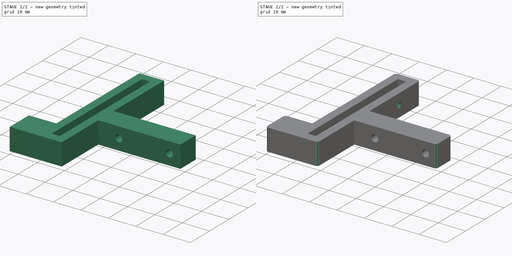
[diagram: build sequence overview — one tinted view per stage of 2, left to right]
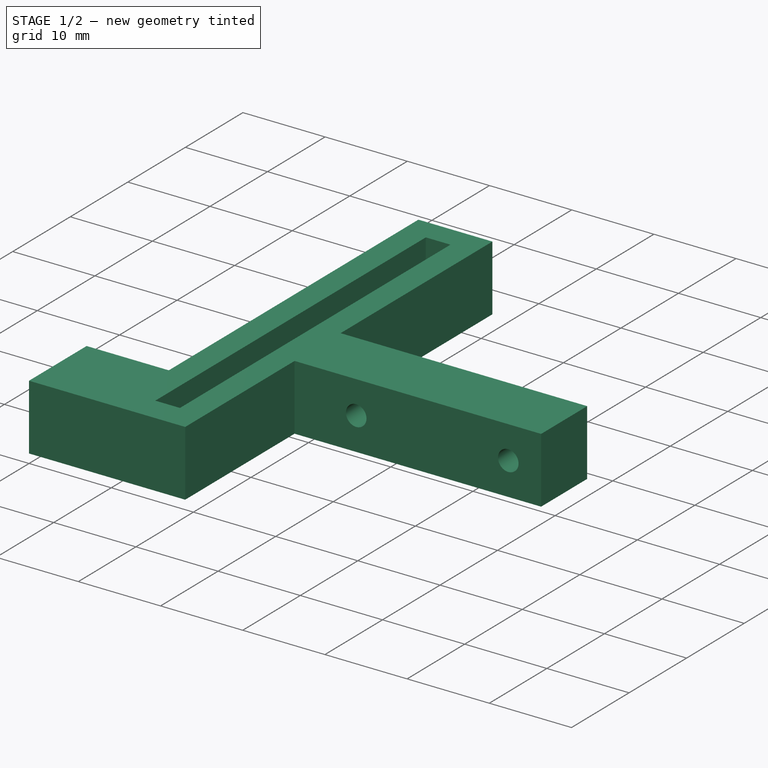
[diagram: stage 1 of 2 — iso view after this stage's code; geometry added in this stage tinted green]
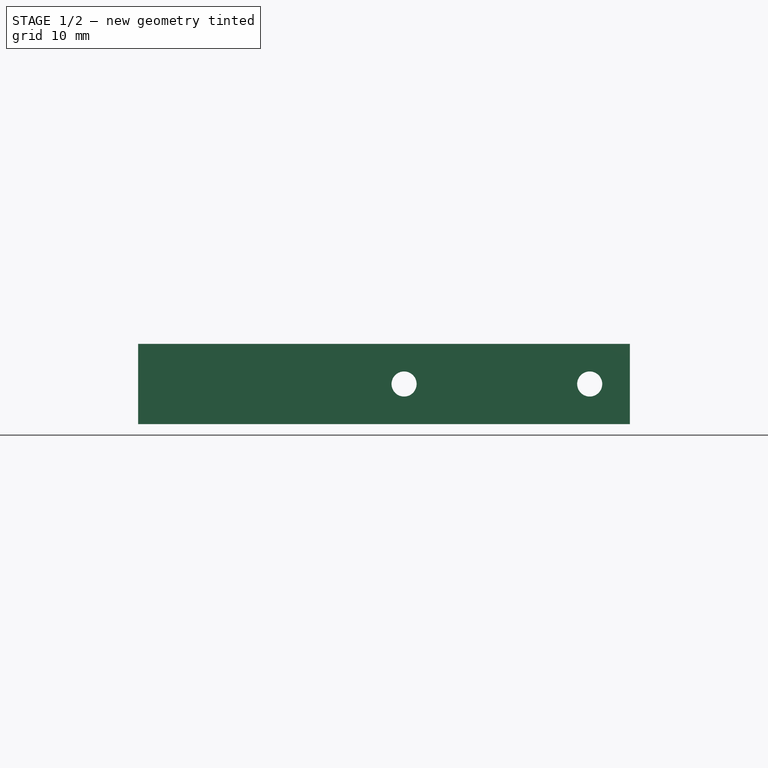
[diagram: stage 1 of 2 — front view after this stage's code; geometry added in this stage tinted green]
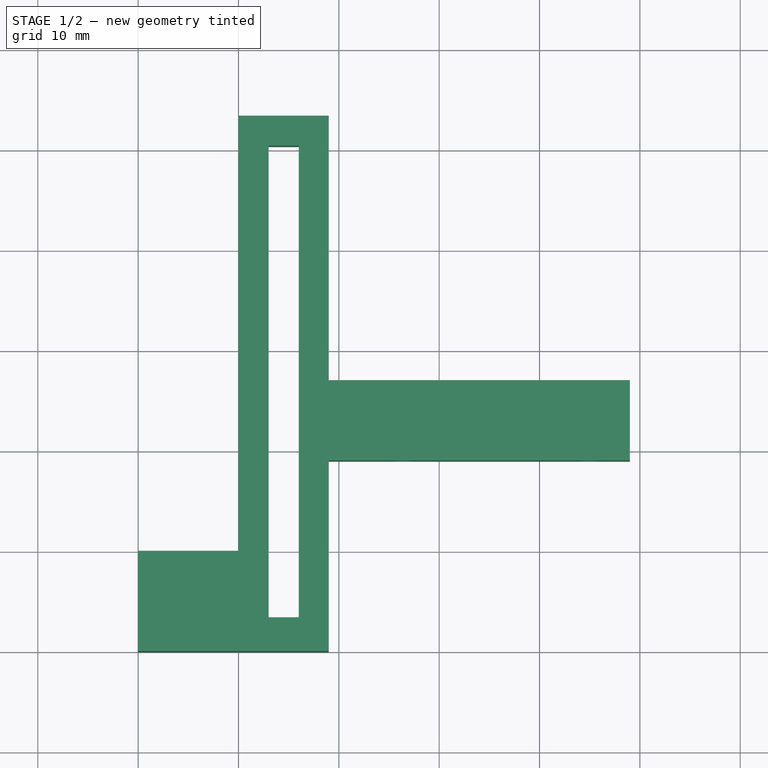
[diagram: stage 1 of 2 — top view after this stage's code; geometry added in this stage tinted green]
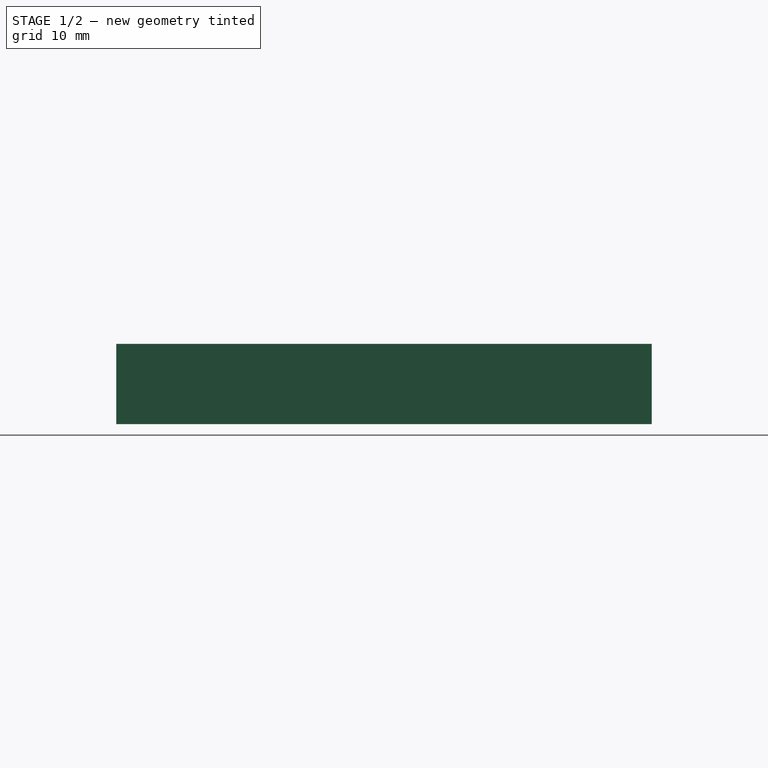
[diagram: stage 1 of 2 — right view after this stage's code; geometry added in this stage tinted green]
FCSTD DOCUMENT  (FreeCAD 0.19R)
Label: bltouch_holder_titan
License: All rights reserved
LicenseURL: http://en.wikipedia.org/wiki/All_rights_reserved
objects: Sketcher::SketchObject×4, PartDesign::Pocket×2, PartDesign::Pad×1, PartDesign::Fillet×1, PartDesign::Body×1
note: 13 computed .brp shape members not serialized (recipe doc carries the construction recipe); baked Part::Feature solids carry a one-line shape summary decoded from their .brp

FEATURE [Sketcher::SketchObject] Sketch
  FullyConstrained = true
  MapMode = 5
  Support = -> [XY_Plane]
  sketch-geometry (4):
    g0: LineSegment StartX=0 StartY=0 StartZ=0 EndX=40 EndY=0 EndZ=0
    g1: LineSegment StartX=40 StartY=0 StartZ=0 EndX=40 EndY=50 EndZ=0
    g2: LineSegment StartX=40 StartY=50 StartZ=0 EndX=0 EndY=50 EndZ=0
    g3: LineSegment StartX=0 StartY=50 StartZ=0 EndX=0 EndY=0 EndZ=0
  constraints (11):
    c: Coincident(g0,g1)
    c: Coincident(g1,g2)
    c: Coincident(g2,g3)
    c: Coincident(g3,g0)
    c: Horizontal(g0)
    c: Horizontal(g2)
    c: Vertical(g1)
    c: Vertical(g3)
    c: Coincident(g0,g-1)
    c: DistanceX(g0,g0) = 40  '50'
    c: DistanceY(g1,g1) = 50
FEATURE [Sketcher::SketchObject] Sketch001
  FullyConstrained = false
  MapMode = 5
  Placement = pos=(0,0,0.2) rot=(0,0,1;0rad)
  sketch-geometry (17):
    g0: LineSegment StartX=0 StartY=0 StartZ=0 EndX=0 EndY=10 EndZ=0
    g1: LineSegment StartX=0 StartY=10 StartZ=0 EndX=10 EndY=10 EndZ=0
    g2: LineSegment StartX=10 StartY=10 StartZ=0 EndX=10 EndY=50.3715 EndZ=0
    g3: LineSegment StartX=0 StartY=0 StartZ=0 EndX=16 EndY=0 EndZ=0
    g4: LineSegment StartX=13 StartY=50.3715 StartZ=0 EndX=13 EndY=3.37149 EndZ=0
    g5: LineSegment StartX=13 StartY=3.37149 StartZ=0 EndX=16 EndY=3.37149 EndZ=0
    g6: LineSegment StartX=16 StartY=3.37149 StartZ=0 EndX=16 EndY=50.3715 EndZ=0
    g7: LineSegment StartX=19 StartY=50.3715 StartZ=0 EndX=19 EndY=27 EndZ=0
    g8: LineSegment StartX=19 StartY=27 StartZ=0 EndX=49 EndY=27 EndZ=0
    g9: LineSegment StartX=49 StartY=27 StartZ=0 EndX=49 EndY=19 EndZ=0
    g10: LineSegment StartX=49 StartY=19 StartZ=0 EndX=19 EndY=19 EndZ=0
    g11: LineSegment StartX=19 StartY=19 StartZ=0 EndX=19 EndY=0 EndZ=0
    g12: LineSegment StartX=19 StartY=0 StartZ=0 EndX=0 EndY=0 EndZ=0
    g13: LineSegment StartX=19 StartY=50.3715 StartZ=0 EndX=19 EndY=53.3715 EndZ=0
    g14: LineSegment StartX=19 StartY=53.3715 StartZ=0 EndX=10 EndY=53.3715 EndZ=0
    g15: LineSegment StartX=10 StartY=53.3715 StartZ=0 EndX=10 EndY=50.3715 EndZ=0
    g16: LineSegment StartX=13 StartY=50.3715 StartZ=0 EndX=16 EndY=50.3715 EndZ=0
  constraints (44):
    c: Coincident(g0,g-1)
    c: DistanceY(g0,g0) = 10
    c: Coincident(g1,g0)
    c: Horizontal(g1)
    c: DistanceX(g1,g1) = 10
    c: Coincident(g2,g1)
    c: Vertical(g2)
    c: DistanceX(g2,g4) = 3
    c: Coincident(g3,g0)
    c: PointOnObject(g3,g-1)
    c: DistanceX(g3,g3) = 16
    c: Vertical(g4)
    c: DistanceY(g4,g4) = 47
    c: Coincident(g5,g4)
    c: Horizontal(g5)
    c: DistanceX(g5,g5) = 3
    c: Coincident(g6,g5)
    c: Vertical(g6)
    c: DistanceX(g6,g7) = 3
    c: Vertical(g7)
    c: Coincident(g8,g7)
    c: Horizontal(g8)
    c: DistanceX(g8,g8) = 30
    c: Coincident(g9,g8)
    c: Vertical(g9)
    c: DistanceY(g9,g0) = -19
    c: Coincident(g10,g9)
    c: Horizontal(g10)
    c: DistanceX(g10,g10) = 30
    c: Coincident(g11,g10)
    c: Vertical(g11)
    c: DistanceY(g11,g0) = 0
    c: Coincident(g12,g11)
    c: Coincident(g12,g0)
    c: Coincident(g13,g14)
    c: Coincident(g14,g15)
    c: Horizontal(g14)
    c: Vertical(g13)
    c: Vertical(g15)
    c: DistanceY(g13,g13) = 3
    c: Coincident(g16,g4)
    c: Coincident(g16,g6)
    c: Horizontal(g16)
    c: DistanceY(g9,g9) = 8
FEATURE [PartDesign::Pad] Pad001
  Direction = (1,1,1)
  Length = 8
  Length2 = 100
  Placement = pos=(0,0,0.2) rot=(0,0,1;0rad)
  Profile = -> Sketch001
  Type = 0
FEATURE [Sketcher::SketchObject] Sketch002
  ExternalGeometry = -> [Pad001]
  FullyConstrained = true
  MapMode = 5
  Placement = pos=(0,19,0.2) rot=(1,0,0;1.5708rad)
  Support = -> [Pad001]
  sketch-geometry (6):
    g0: LineSegment StartX=49 StartY=8 StartZ=0 EndX=45 EndY=8 EndZ=0
    g1: LineSegment StartX=45 StartY=8 StartZ=0 EndX=45 EndY=4 EndZ=0
    g2: LineSegment StartX=45 StartY=8 StartZ=0 EndX=26.5 EndY=8 EndZ=0
    g3: LineSegment StartX=26.5 StartY=8 StartZ=0 EndX=26.5 EndY=4 EndZ=0
    g4: Circle CenterX=26.5 CenterY=4 CenterZ=0 NormalX=0 NormalY=0 NormalZ=1 AngleXU=0 Radius=1.25
    g5: Circle CenterX=45 CenterY=4 CenterZ=0 NormalX=0 NormalY=0 NormalZ=1 AngleXU=0 Radius=1.25
  constraints (16):
    c: Coincident(g0,g-4)
    c: PointOnObject(g0,g-4)
    c: Coincident(g1,g0)
    c: Vertical(g1)
    c: Coincident(g2,g0)
    c: PointOnObject(g2,g-4)
    c: Coincident(g3,g2)
    c: Vertical(g3)
    c: DistanceY(g1,g1) = 4
    c: DistanceY(g3,g3) = 4
    c: DistanceX(g0,g0) = 4
    c: DistanceX(g2,g2) = 18.5
    c: Coincident(g4,g3)
    c: Coincident(g5,g1)
    c: Diameter(g5) = 2.5
    c: Equal(g5,g4)
FEATURE [PartDesign::Pocket] Pocket
  BaseFeature = -> Pad001
  Length = 5
  Length2 = 100
  Placement = pos=(0,0,0.2) rot=(0,0,1;0rad)
  Profile = -> Sketch002
  Type = 1
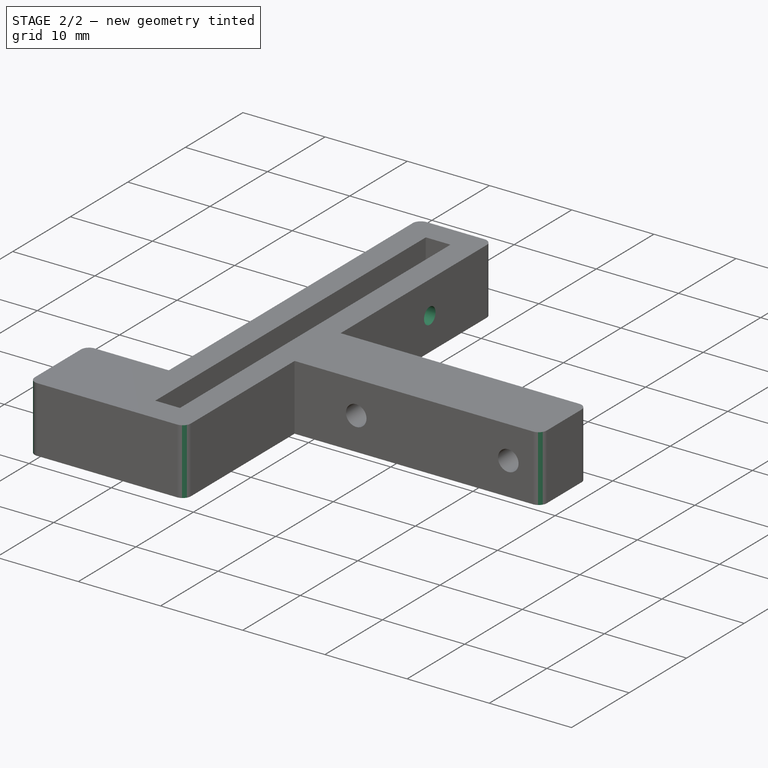
[diagram: stage 2 of 2 — iso view after this stage's code; geometry added in this stage tinted green]
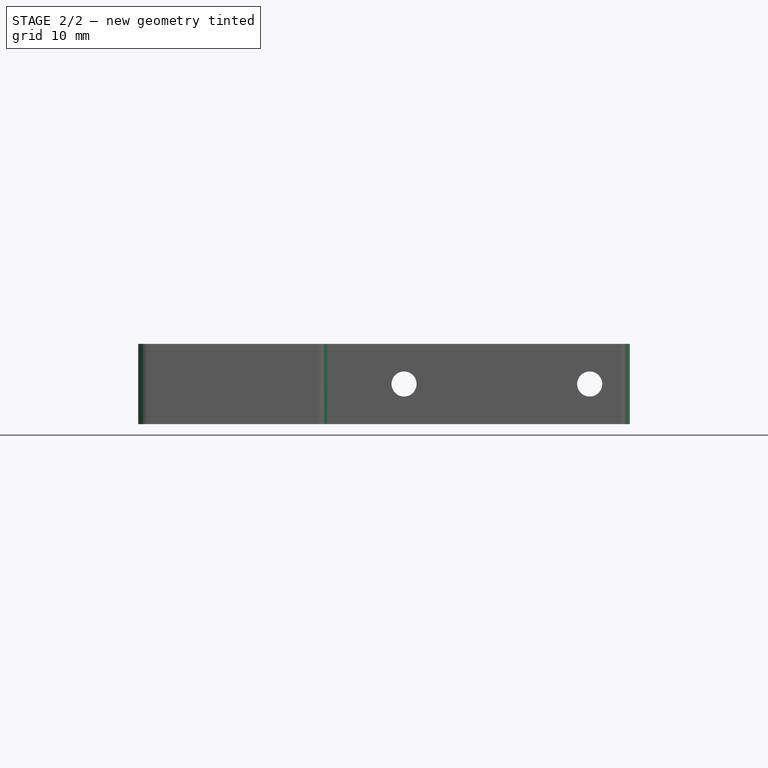
[diagram: stage 2 of 2 — front view after this stage's code; geometry added in this stage tinted green]
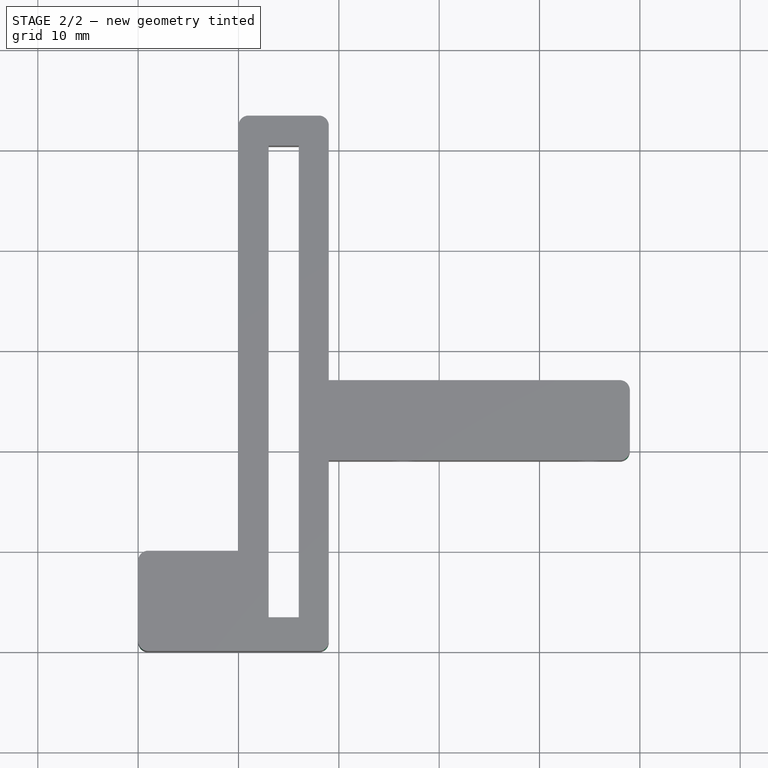
[diagram: stage 2 of 2 — top view after this stage's code; geometry added in this stage tinted green]
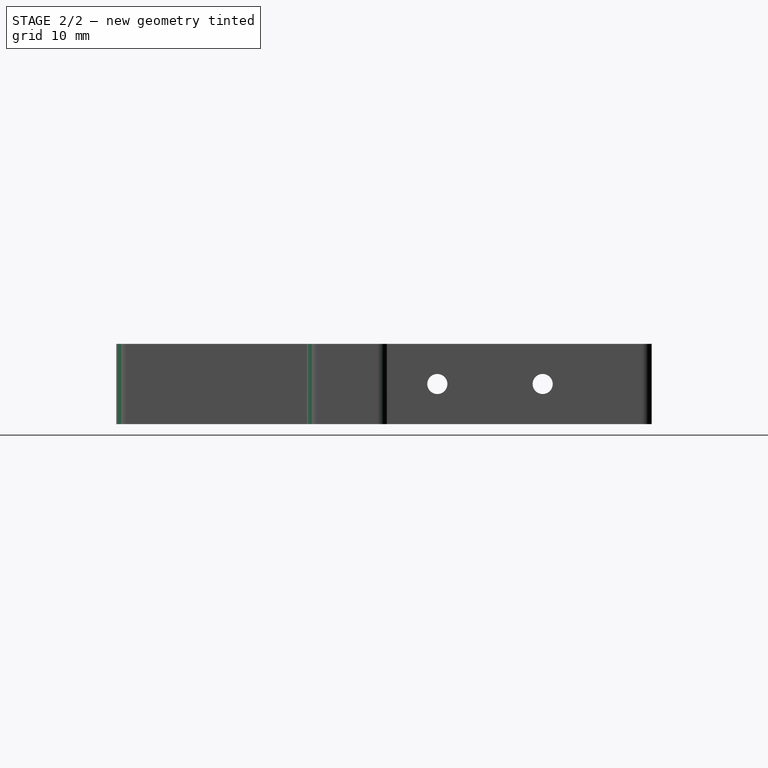
[diagram: stage 2 of 2 — right view after this stage's code; geometry added in this stage tinted green]
FEATURE [Sketcher::SketchObject] Sketch003
  ExternalGeometry = -> [Pocket]
  FullyConstrained = true
  MapMode = 5
  Placement = pos=(19,0,0.2) rot=(0.57735,0.57735,0.57735;2.0944rad)
  Support = -> [Pocket]
  sketch-geometry (6):
    g0: LineSegment StartX=27 StartY=8 StartZ=0 EndX=32 EndY=8 EndZ=0
    g1: LineSegment StartX=32 StartY=8 StartZ=0 EndX=42.5 EndY=8 EndZ=0
    g2: LineSegment StartX=42.5 StartY=8 StartZ=0 EndX=42.5 EndY=4 EndZ=0
    g3: LineSegment StartX=32 StartY=8 StartZ=0 EndX=32 EndY=4 EndZ=0
    g4: Circle CenterX=32 CenterY=4 CenterZ=0 NormalX=0 NormalY=0 NormalZ=1 AngleXU=0 Radius=1
    g5: Circle CenterX=42.5 CenterY=4 CenterZ=0 NormalX=0 NormalY=0 NormalZ=1 AngleXU=0 Radius=1
  constraints (16):
    c: Coincident(g0,g-4)
    c: PointOnObject(g0,g-4)
    c: Coincident(g1,g0)
    c: PointOnObject(g1,g-4)
    c: Coincident(g2,g1)
    c: Vertical(g2)
    c: Coincident(g3,g0)
    c: Perpendicular(g3,g0)
    c: DistanceY(g2,g2) = 4
    c: DistanceY(g3,g3) = 4
    c: DistanceX(g3,g2) = 10.5
    c: Coincident(g4,g3)
    c: Coincident(g5,g2)
    c: Diameter(g4) = 2
    c: Equal(g4,g5)
    c: DistanceX(g-1,g4) = 32
FEATURE [PartDesign::Pocket] Pocket001
  BaseFeature = -> Pocket
  Length = 5
  Length2 = 100
  Placement = pos=(0,0,0.2) rot=(0,0,1;0rad)
  Profile = -> Sketch003
  Type = 1
FEATURE [PartDesign::Fillet] Fillet
  Base = -> Pocket001 [Edge50,Edge49,Edge52,Edge64,Edge61,Edge60,Edge55]
  BaseFeature = -> Pocket001
  Placement = pos=(0,0,0.2) rot=(0,0,1;0rad)
  Radius = 1
  SupportTransform = false
FEATURE [PartDesign::Body] Body
  Group = -> [Sketch,Sketch001,Pad001,Sketch002,Pocket,Sketch003,Pocket001,Fillet]
  Origin = -> Origin
  Tip = -> Fillet
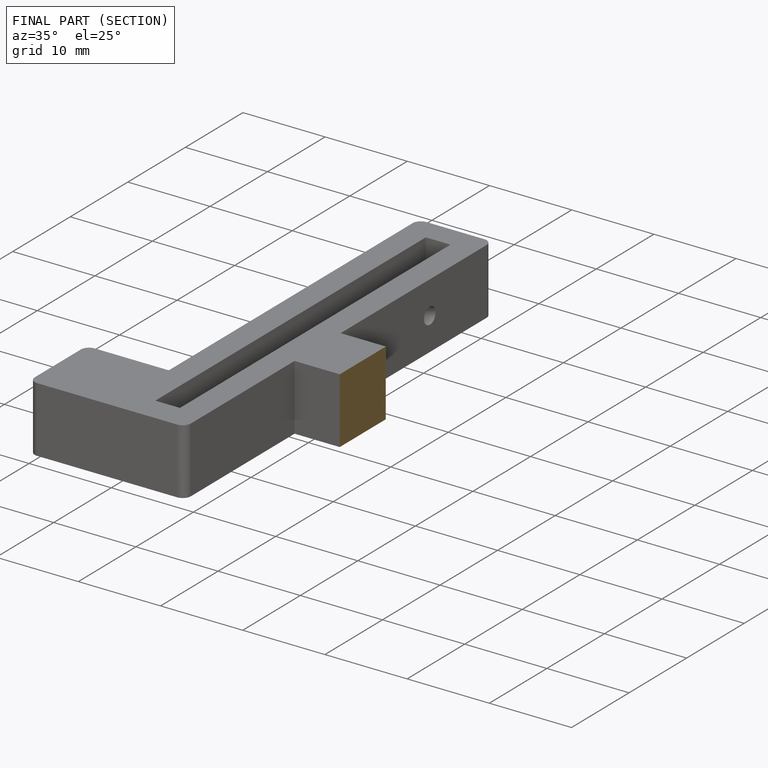
[diagram: finished part — half-section view (interior)]
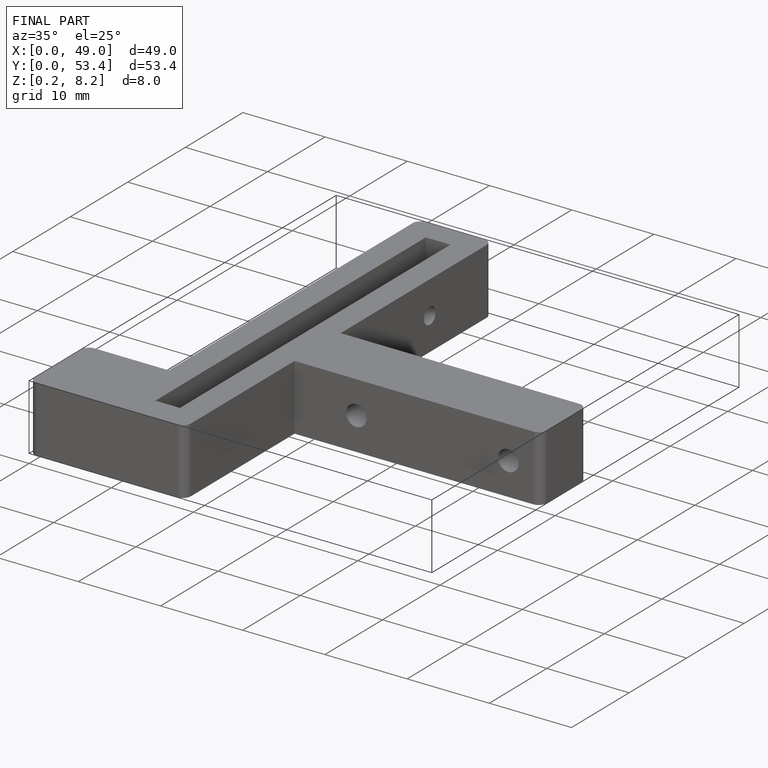
[diagram: finished part — iso view with bounding-box wireframe]
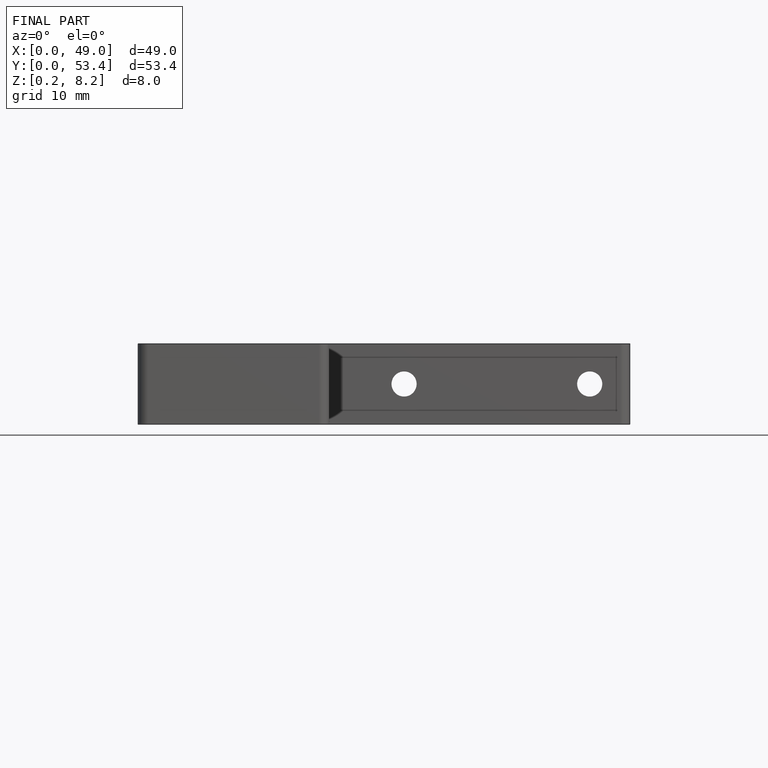
[diagram: finished part — front view with bounding-box wireframe]
